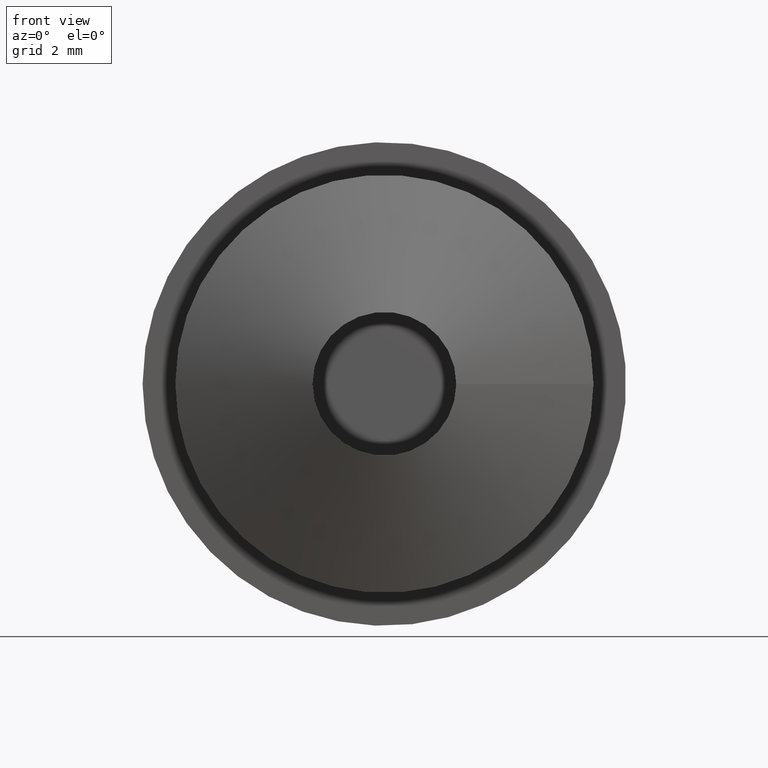
[diagram: clean part render]
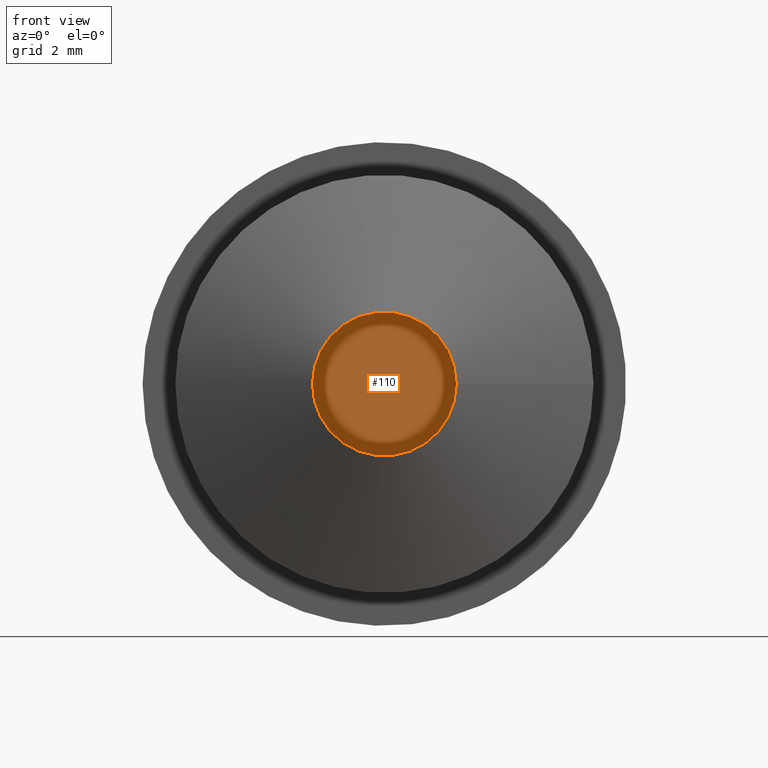
[diagram: same view with one face highlighted and labeled with its STEP entity id]
A machine part, front view. The second image highlights one B-rep face of the part: STEP entity #110.
In plain terms, the highlighted planar face has unit normal (0, 1, 0).
Its self-contained STEP definition (entity closure, byte-faithful):
#16=PLANE('',#127);
#35=FACE_OUTER_BOUND('',#48,.T.);
#48=EDGE_LOOP('',(#93));
#62=CIRCLE('',#125,2.75);
#71=VERTEX_POINT('',#188);
#80=EDGE_CURVE('',#71,#71,#62,.T.);
#93=ORIENTED_EDGE('',*,*,#80,.F.);
#110=ADVANCED_FACE('',(#35),#16,.F.);
#125=AXIS2_PLACEMENT_3D('',#189,#153,#154);
#127=AXIS2_PLACEMENT_3D('',#192,#157,#158);
#153=DIRECTION('center_axis',(0.,1.,0.));
#154=DIRECTION('ref_axis',(-1.,0.,0.));
#157=DIRECTION('center_axis',(0.,1.,0.));
#158=DIRECTION('ref_axis',(0.,0.,1.));
#188=CARTESIAN_POINT('',(2.75,-0.499999999999999,3.36777869765522E-16));
#189=CARTESIAN_POINT('Origin',(0.,-0.499999999999999,0.));
#192=CARTESIAN_POINT('Origin',(-1.12172627376305E-16,-0.499999999999999,
4.20539024479226E-17));